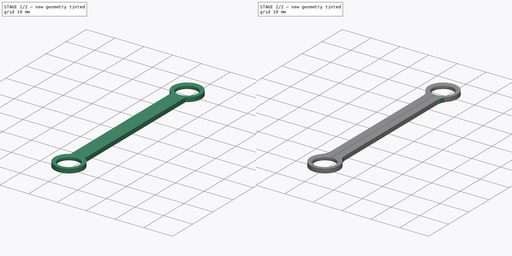
[diagram: build sequence overview — one tinted view per stage of 2, left to right]
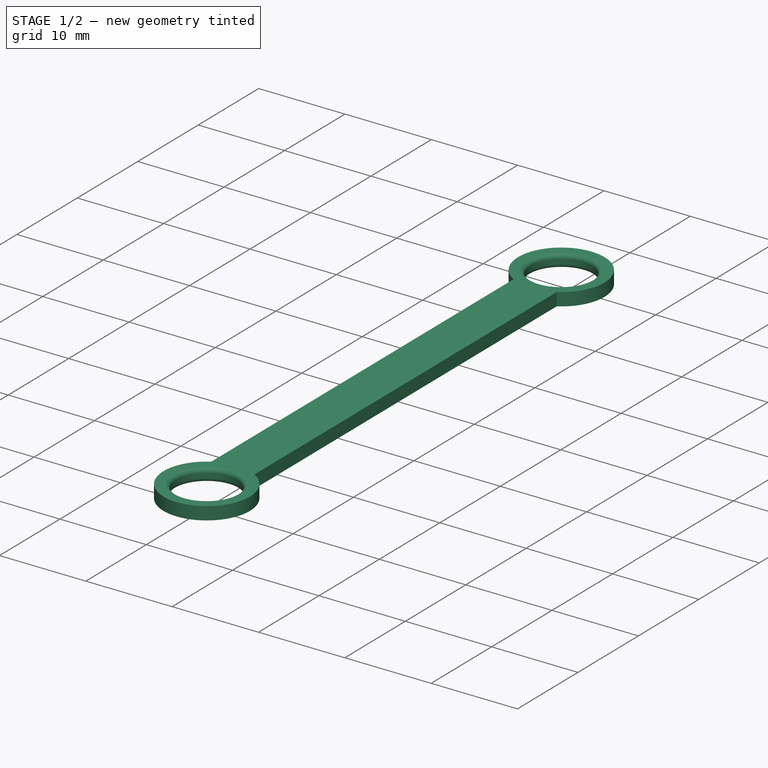
[diagram: stage 1 of 2 — iso view after this stage's code; geometry added in this stage tinted green]
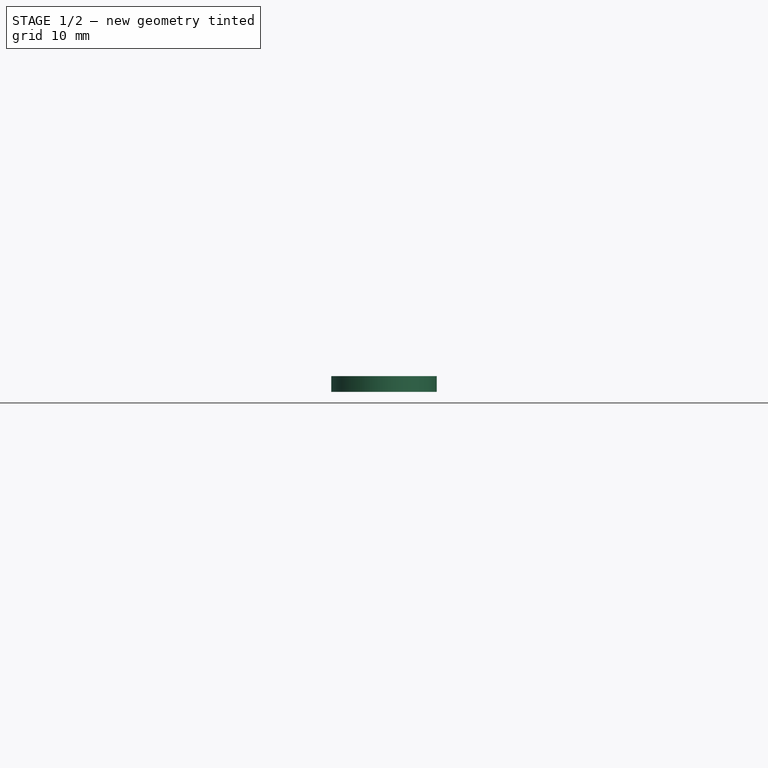
[diagram: stage 1 of 2 — front view after this stage's code; geometry added in this stage tinted green]
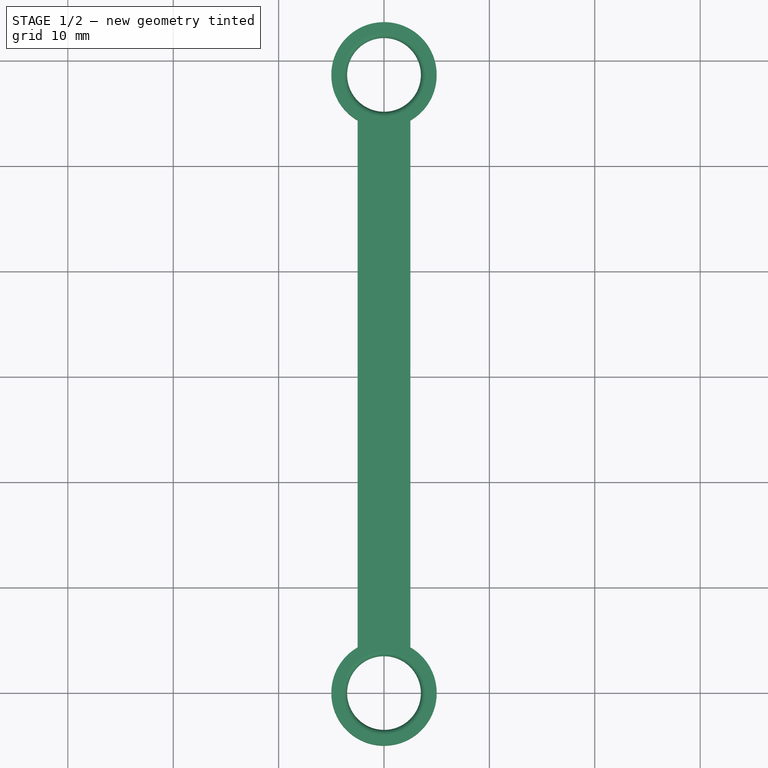
[diagram: stage 1 of 2 — top view after this stage's code; geometry added in this stage tinted green]
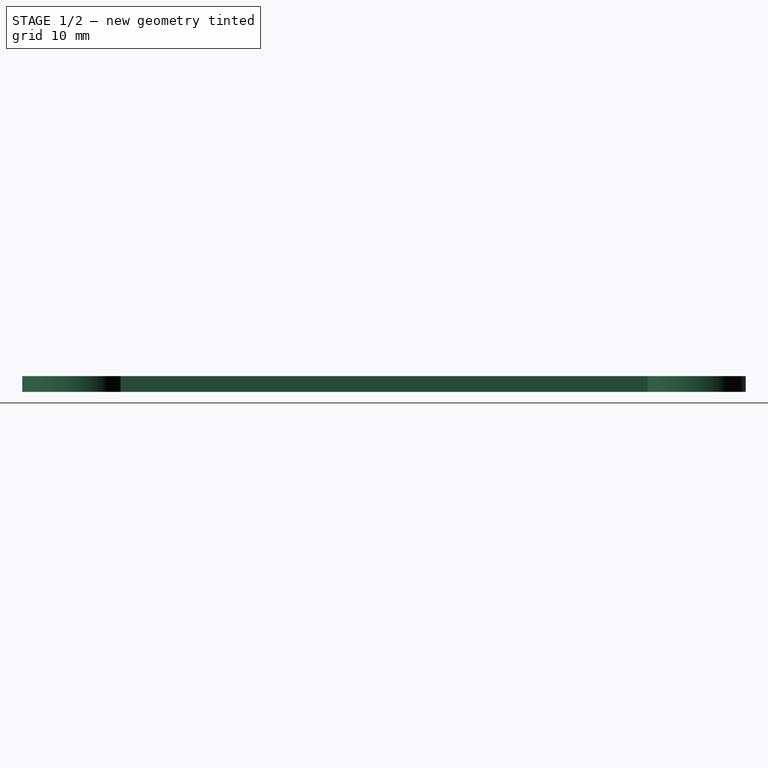
[diagram: stage 1 of 2 — right view after this stage's code; geometry added in this stage tinted green]
FCSTD DOCUMENT  (FreeCAD 0.17R13662 (Git))
Label: thumbscrew_leash_v1
License: CreativeCommons Attribution-ShareAlike
LicenseURL: http://creativecommons.org/licenses/by-sa/4.0/
objects: Sketcher::SketchObject×2, PartDesign::Fillet×2, PartDesign::Pad×1, PartDesign::Pocket×1, PartDesign::Body×1
note: 9 computed .brp shape members not serialized (recipe doc carries the construction recipe); baked Part::Feature solids carry a one-line shape summary decoded from their .brp

FEATURE [Sketcher::SketchObject] Sketch
  MapMode = 5
  Support = -> [XY_Plane]
  sketch-geometry (8):
    g0: Circle CenterX=0 CenterY=0 CenterZ=0 NormalX=0 NormalY=0 NormalZ=1 AngleXU=0 Radius=3.5
    g1: ArcOfCircle CenterX=0 CenterY=0 CenterZ=0 NormalX=0 NormalY=0 NormalZ=1 AngleXU=0 Radius=5 StartAngle=2.0944 EndAngle=7.33038
    g2: LineSegment [constr] StartX=2.5 StartY=4.33013 StartZ=0 EndX=-2.5 EndY=4.33013 EndZ=0
    g3: LineSegment StartX=-2.5 StartY=4.33013 StartZ=0 EndX=-2.5 EndY=54.3301 EndZ=0
    g4: LineSegment [constr] StartX=-2.5 StartY=54.3301 StartZ=0 EndX=2.5 EndY=54.3301 EndZ=0
    g5: LineSegment StartX=2.5 StartY=54.3301 StartZ=0 EndX=2.5 EndY=4.33013 EndZ=0
    g6: Circle CenterX=0 CenterY=58.6603 CenterZ=0 NormalX=0 NormalY=0 NormalZ=1 AngleXU=0 Radius=3.5
    g7: ArcOfCircle CenterX=0 CenterY=58.6603 CenterZ=0 NormalX=0 NormalY=0 NormalZ=1 AngleXU=0 Radius=5 StartAngle=5.23599 EndAngle=10.472
  constraints (22):
    c: Coincident(g2,g3)
    c: Coincident(g3,g4)
    c: Coincident(g4,g5)
    c: Coincident(g5,g2)
    c: Horizontal(g2)
    c: Horizontal(g4)
    c: Vertical(g3)
    c: Vertical(g5)
    c: Coincident(g1,g2)
    c: Coincident(g1,g2)
    c: Coincident(g0,g1)
    c: Coincident(g0,g-1)
    c: Radius(g0) = 3.5
    c: Radius(g1) = 5
    c: DistanceX(g2,g2) = 5
    c: Coincident(g6,g7)
    c: PointOnObject(g6,g-2)
    c: Coincident(g7,g4)
    c: Coincident(g3,g7)
    c: Equal(g7,g1)
    c: DistanceY(g3,g3) = 50
    c: Radius(g6) = 3.5
FEATURE [PartDesign::Pad] Pad
  Length = 1.5
  Length2 = 100
  Profile = -> Sketch
  Type = 0
FEATURE [Sketcher::SketchObject] Sketch001
  MapMode = 5
  Placement = pos=(0,0,1.5) rot=(0,0,1;0rad)
  Support = -> [Pad]
  sketch-geometry (4):
    g0: LineSegment StartX=-0.05 StartY=60 StartZ=0 EndX=0.05 EndY=60 EndZ=0
    g1: LineSegment StartX=0.05 StartY=60 StartZ=0 EndX=0.05 EndY=0 EndZ=0
    g2: LineSegment StartX=0.05 StartY=0 StartZ=0 EndX=-0.05 EndY=0 EndZ=0
    g3: LineSegment StartX=-0.05 StartY=0 StartZ=0 EndX=-0.05 EndY=60 EndZ=0
  constraints (12):
    c: Coincident(g0,g1)
    c: Coincident(g1,g2)
    c: Coincident(g2,g3)
    c: Coincident(g3,g0)
    c: Horizontal(g0)
    c: Horizontal(g2)
    c: Vertical(g1)
    c: Vertical(g3)
    c: PointOnObject(g1,g-1)
    c: DistanceY(g1,g1) = 60
    c: DistanceX(g2,g2) = 0.1
    c: DistanceX(g2) = -0.05
FEATURE [PartDesign::Fillet] Fillet
  Base = -> Pad [Edge18,Edge17,Edge15,Edge14]
  BaseFeature = -> Pad
  Radius = 0.5
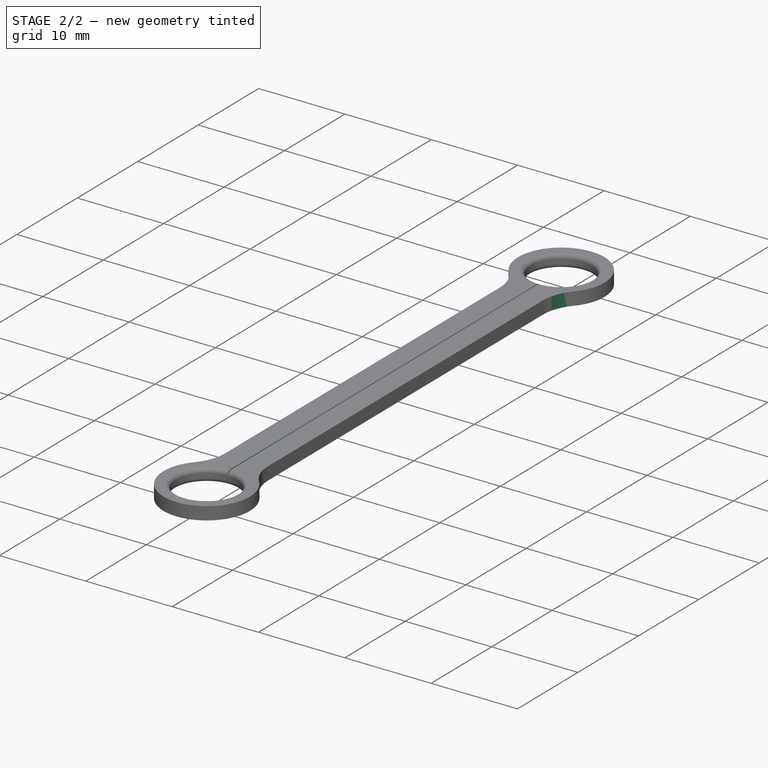
[diagram: stage 2 of 2 — iso view after this stage's code; geometry added in this stage tinted green]
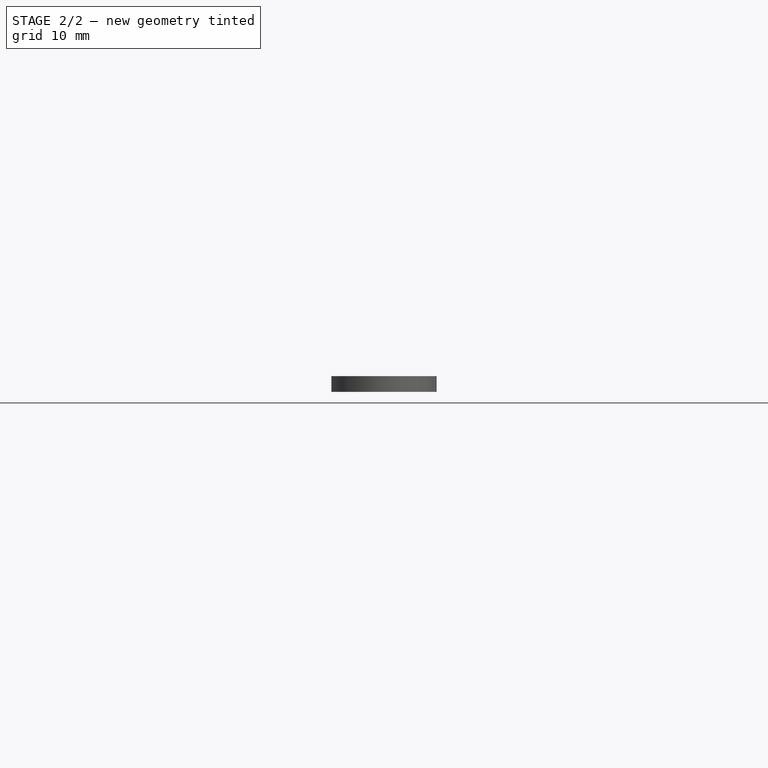
[diagram: stage 2 of 2 — front view after this stage's code; geometry added in this stage tinted green]
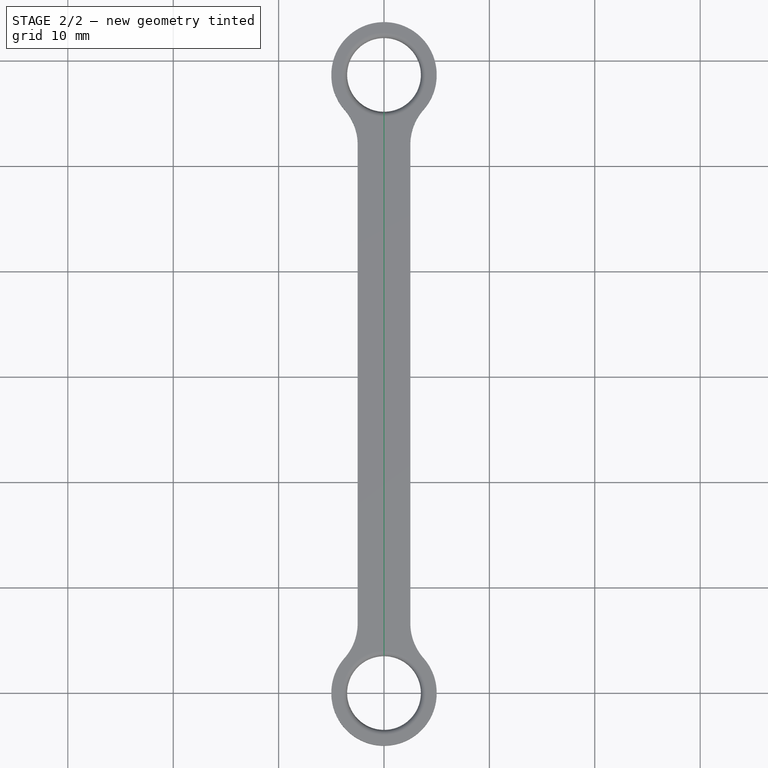
[diagram: stage 2 of 2 — top view after this stage's code; geometry added in this stage tinted green]
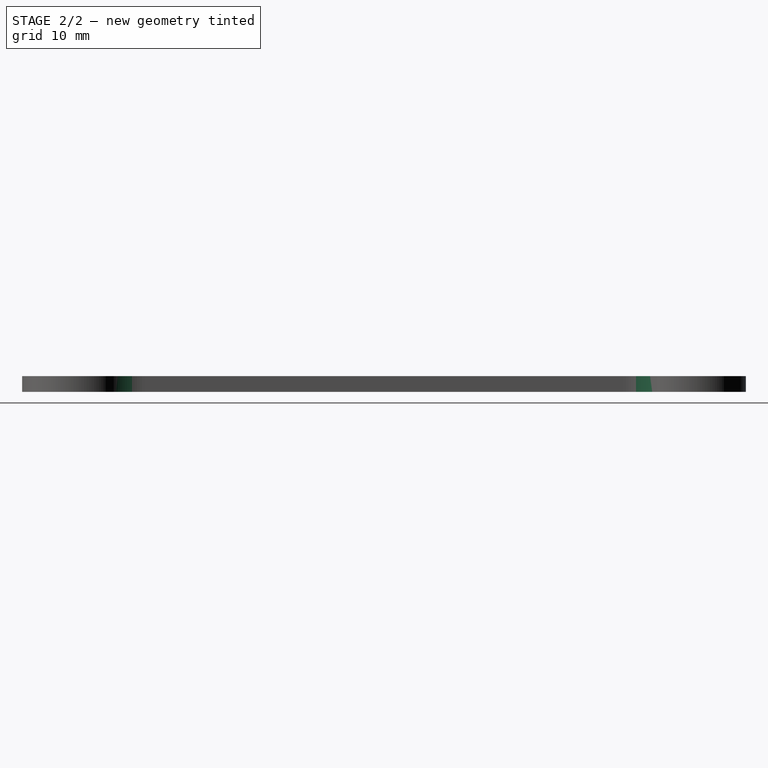
[diagram: stage 2 of 2 — right view after this stage's code; geometry added in this stage tinted green]
FEATURE [PartDesign::Pocket] Pocket
  BaseFeature = -> Fillet
  Length = 0.3
  Length2 = 100
  Profile = -> Sketch001
  Type = 0
FEATURE [PartDesign::Fillet] Fillet001
  Base = -> Pocket [Edge33,Edge32,Edge35,Edge34]
  BaseFeature = -> Pocket
  Radius = 5
FEATURE [PartDesign::Body] Body
  Group = -> [Sketch,Pad,Sketch001,Fillet,Pocket,Fillet001]
  Origin = -> Origin
  Tip = -> Fillet001
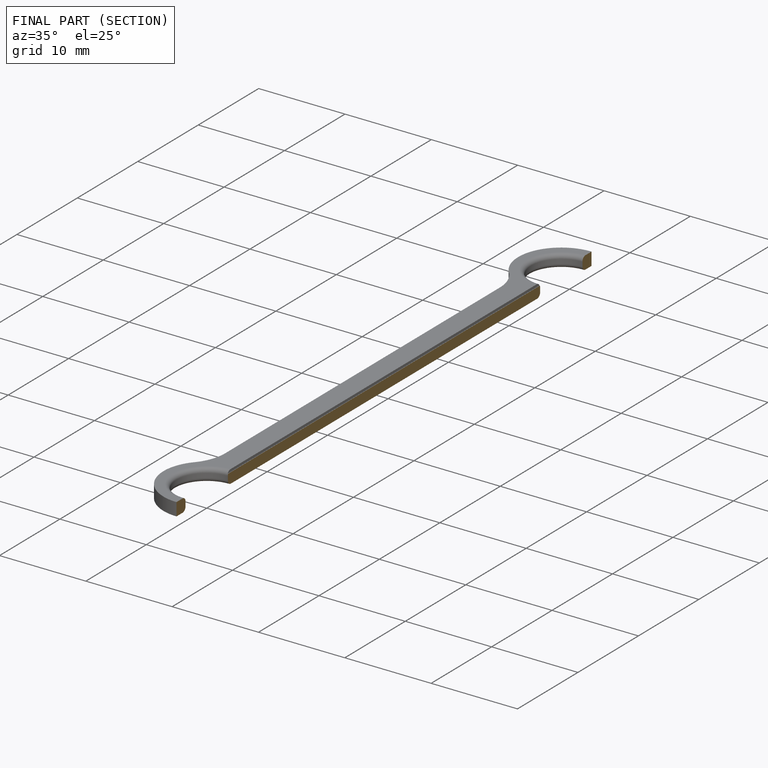
[diagram: finished part — half-section view (interior)]
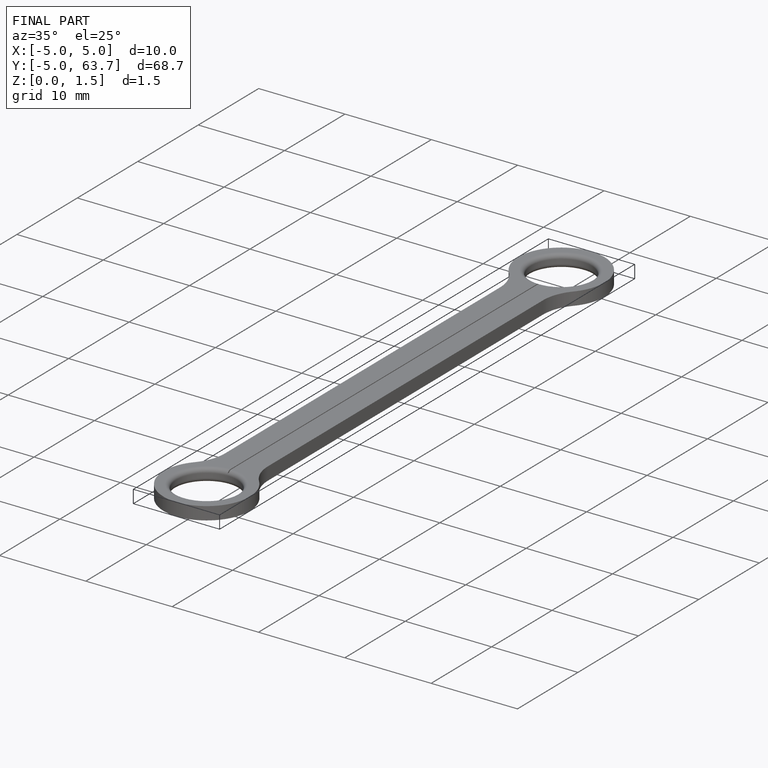
[diagram: finished part — iso view with bounding-box wireframe]
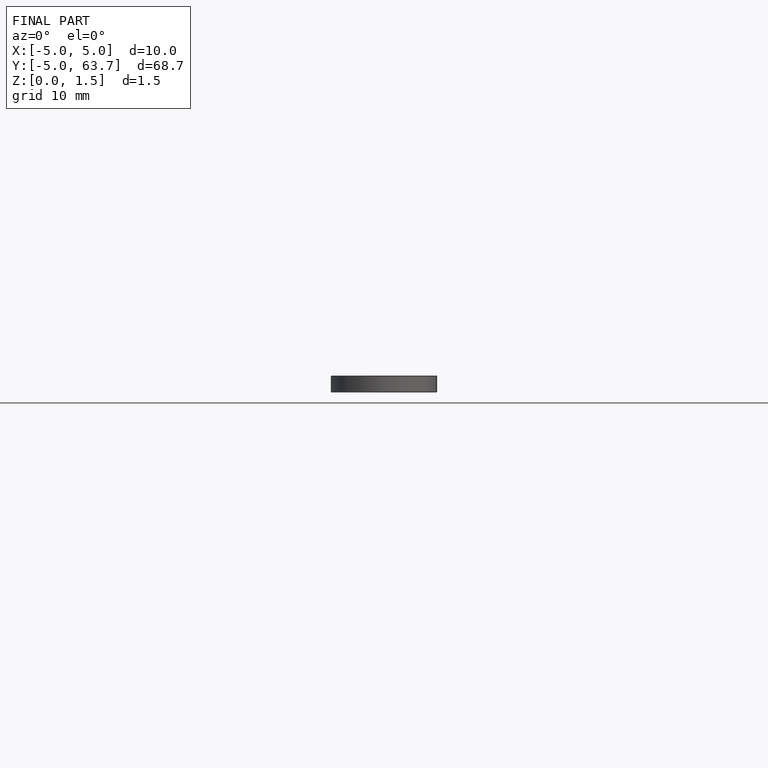
[diagram: finished part — front view with bounding-box wireframe]
